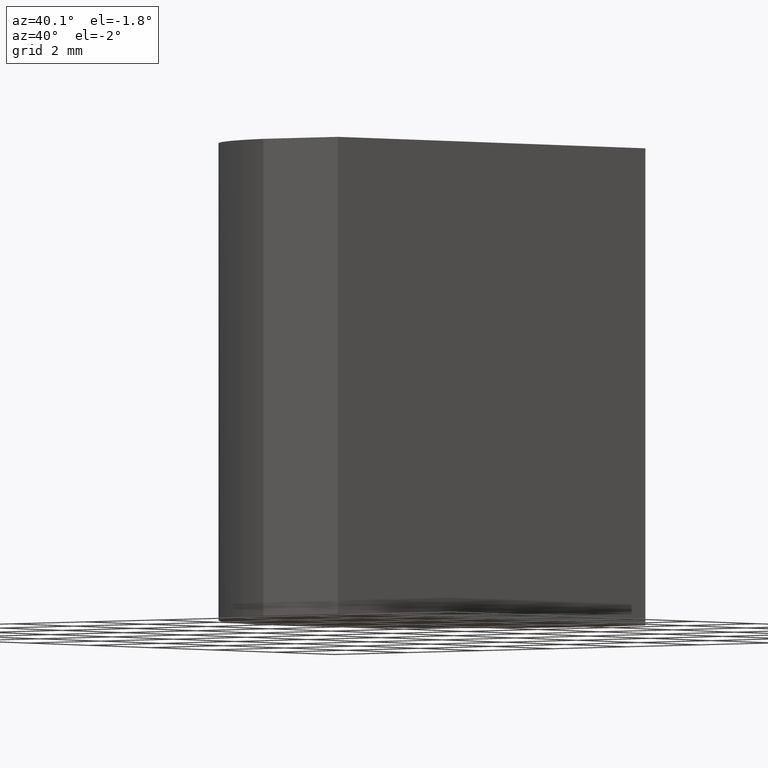
[diagram: clean part render]
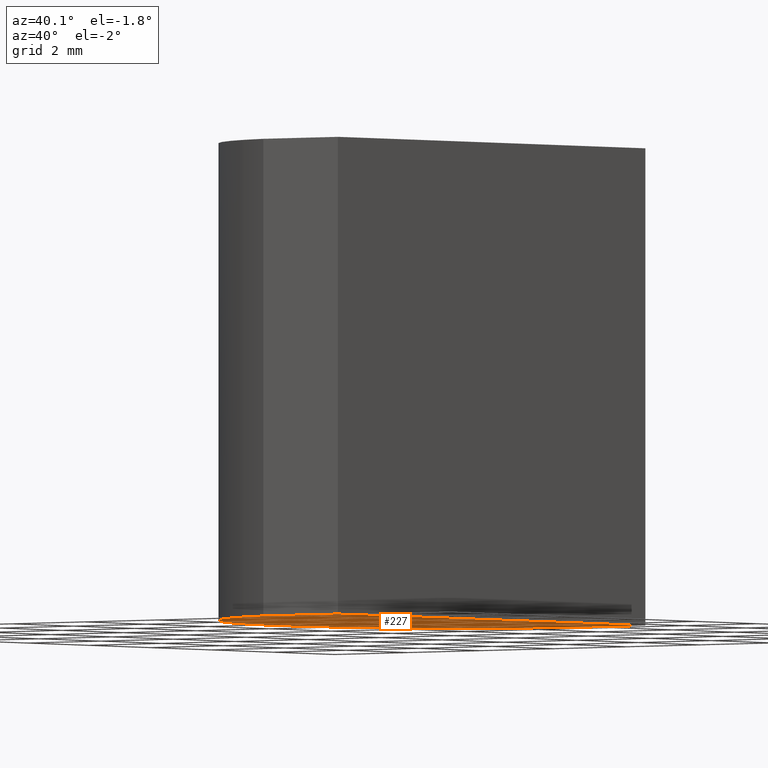
[diagram: same view with one face highlighted and labeled with its STEP entity id]
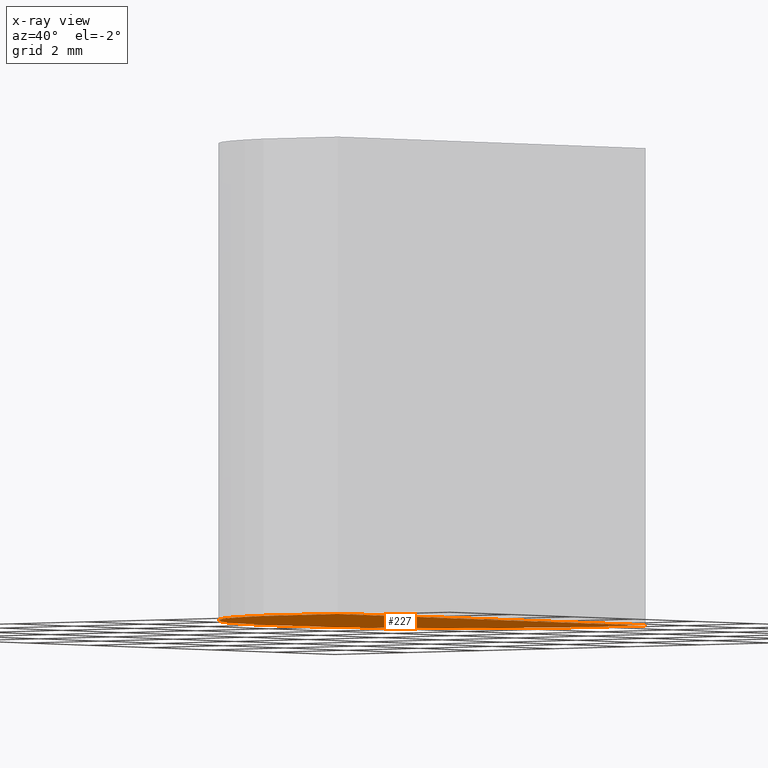
[diagram: x-ray of the same camera — body ghosted, the highlighted face saturated]
A machine part, auxiliary view. The second image highlights one B-rep face of the part: STEP entity #227.
The next image is the same camera in x-ray: the body ghosted, the highlighted face saturated — about 0% of this face is hidden behind the body in this view.
In plain terms, the highlighted planar face has unit normal (0, 0, 1).
Its self-contained STEP definition (entity closure, byte-faithful):
#3 = CARTESIAN_POINT ( 'NONE',  ( 0.7251235799513326974, 5.000000000000000000, 0.000000000000000000 ) ) ;
#4 = VERTEX_POINT ( 'NONE', #29 ) ;
#9 = VERTEX_POINT ( 'NONE', #90 ) ;
#10 = CARTESIAN_POINT ( 'NONE',  ( -1.314876420048667560, -5.000000000000000000, 0.000000000000000000 ) ) ;
#15 = CARTESIAN_POINT ( 'NONE',  ( -1.314876420048667560, 5.000000000000000000, 0.000000000000000000 ) ) ;
#28 = EDGE_LOOP ( 'NONE', ( #213, #106, #46, #219, #193 ) ) ;
#29 = CARTESIAN_POINT ( 'NONE',  ( 0.7251235799513326974, 5.000000000000000000, 0.000000000000000000 ) ) ;
#33 = DIRECTION ( 'NONE',  ( -0.000000000000000000, 1.000000000000000000, -0.000000000000000000 ) ) ;
#34 = AXIS2_PLACEMENT_3D ( 'NONE', #172, #152, #130 ) ;
#35 = DIRECTION ( 'NONE',  ( 1.000000000000000000, 0.000000000000000000, 0.000000000000000000 ) ) ;
#37 = DIRECTION ( 'NONE',  ( 1.000000000000000000, 0.000000000000000000, 0.000000000000000000 ) ) ;
#38 = DIRECTION ( 'NONE',  ( 1.000000000000000000, 0.000000000000000000, -0.000000000000000000 ) ) ;
#43 = DIRECTION ( 'NONE',  ( -1.000000000000000000, -0.000000000000000000, -0.000000000000000000 ) ) ;
#46 = ORIENTED_EDGE ( 'NONE', *, *, #78, .F. ) ;
#57 = VECTOR ( 'NONE', #33, 1000.000000000000000 ) ;
#60 = VERTEX_POINT ( 'NONE', #195 ) ;
#65 = VERTEX_POINT ( 'NONE', #10 ) ;
#78 = EDGE_CURVE ( 'NONE', #9, #4, #223, .T. ) ;
#82 = AXIS2_PLACEMENT_3D ( 'NONE', #160, #97, #38 ) ;
#90 = CARTESIAN_POINT ( 'NONE',  ( 0.7251235799513326974, -5.000000000000000000, 0.000000000000000000 ) ) ;
#92 = CIRCLE ( 'NONE', #34, 5.169999999999999929 ) ;
#94 = DIRECTION ( 'NONE',  ( 0.000000000000000000, 0.000000000000000000, 1.000000000000000000 ) ) ;
#97 = DIRECTION ( 'NONE',  ( 0.000000000000000000, 0.000000000000000000, 1.000000000000000000 ) ) ;
#98 = AXIS2_PLACEMENT_3D ( 'NONE', #230, #94, #37 ) ;
#106 = ORIENTED_EDGE ( 'NONE', *, *, #123, .F. ) ;
#123 = EDGE_CURVE ( 'NONE', #4, #259, #155, .T. ) ;
#127 = CARTESIAN_POINT ( 'NONE',  ( -1.314876420048667560, 5.000000000000000000, 0.000000000000000000 ) ) ;
#130 = DIRECTION ( 'NONE',  ( 1.000000000000000000, 0.000000000000000000, 0.000000000000000000 ) ) ;
#137 = EDGE_CURVE ( 'NONE', #259, #60, #92, .T. ) ;
#139 = CARTESIAN_POINT ( 'NONE',  ( -1.314876420048667560, -5.000000000000000000, 0.000000000000000000 ) ) ;
#140 = LINE ( 'NONE', #139, #264 ) ;
#141 = PLANE ( 'NONE',  #82 ) ;
#152 = DIRECTION ( 'NONE',  ( 0.000000000000000000, 0.000000000000000000, 1.000000000000000000 ) ) ;
#155 = LINE ( 'NONE', #127, #211 ) ;
#160 = CARTESIAN_POINT ( 'NONE',  ( 0.000000000000000000, 0.000000000000000000, 0.000000000000000000 ) ) ;
#161 = EDGE_CURVE ( 'NONE', #60, #65, #228, .T. ) ;
#172 = CARTESIAN_POINT ( 'NONE',  ( 0.000000000000000000, 0.000000000000000000, 0.000000000000000000 ) ) ;
#189 = EDGE_CURVE ( 'NONE', #65, #9, #140, .T. ) ;
#193 = ORIENTED_EDGE ( 'NONE', *, *, #161, .F. ) ;
#195 = CARTESIAN_POINT ( 'NONE',  ( -5.169999999999999929, 0.000000000000000000, 0.000000000000000000 ) ) ;
#211 = VECTOR ( 'NONE', #43, 1000.000000000000000 ) ;
#213 = ORIENTED_EDGE ( 'NONE', *, *, #137, .F. ) ;
#219 = ORIENTED_EDGE ( 'NONE', *, *, #189, .F. ) ;
#223 = LINE ( 'NONE', #3, #57 ) ;
#227 = ADVANCED_FACE ( 'NONE', ( #268 ), #141, .F. ) ;
#228 = CIRCLE ( 'NONE', #98, 5.169999999999999929 ) ;
#230 = CARTESIAN_POINT ( 'NONE',  ( 0.000000000000000000, 0.000000000000000000, 0.000000000000000000 ) ) ;
#259 = VERTEX_POINT ( 'NONE', #15 ) ;
#264 = VECTOR ( 'NONE', #35, 1000.000000000000000 ) ;
#268 = FACE_OUTER_BOUND ( 'NONE', #28, .T. ) ;